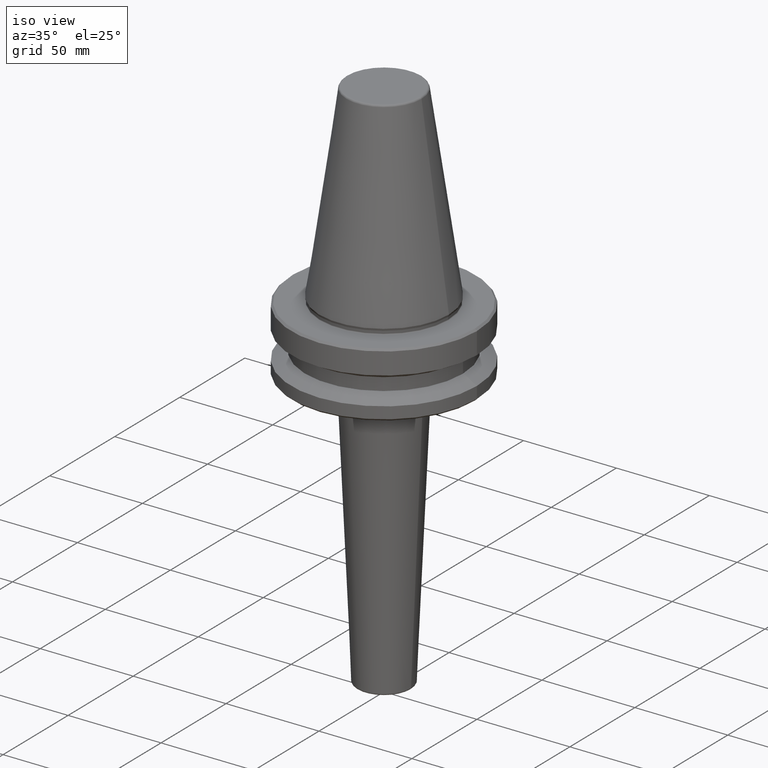
[diagram: clean part render]
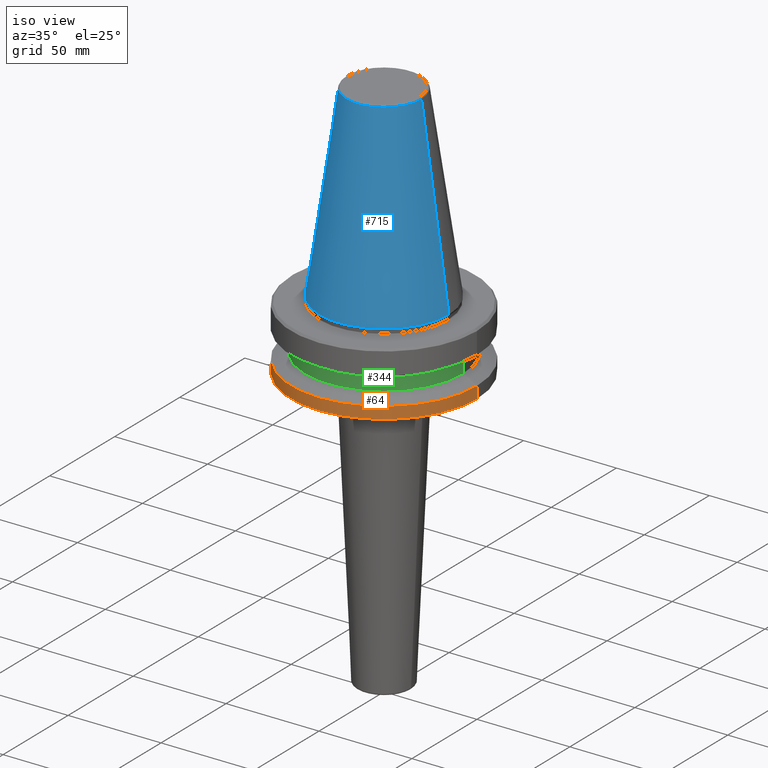
[diagram: same view with three faces highlighted in distinct colors, each labeled with its STEP entity id]
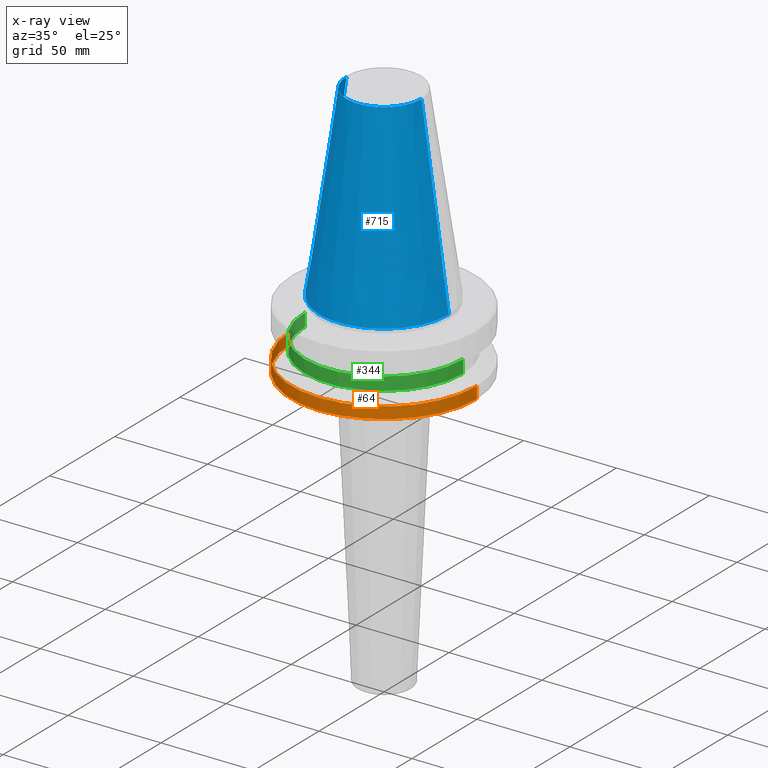
[diagram: x-ray of the same camera — body ghosted, the three highlighted faces saturated]
A machine part, iso view with three faces highlighted in distinct colors.
The next image is the same camera in x-ray (body ghosted, the three faces saturated) — at least one of them is partly hidden behind the body in this view.
Their STEP definitions:

[orange] entity #64 — the highlighted cylindrical surface (partial cylindrical patch) has radius 50 mm, axis along (-0, -0, 1).
#24 = CARTESIAN_POINT ( 'NONE',  ( 50.00000000000000000, 0.0000000000000000000, -37.00000000000002100 ) ) ;
#36 = DIRECTION ( 'NONE',  ( -0.0000000000000000000, -0.0000000000000000000, 1.000000000000000000 ) ) ;
#56 = LINE ( 'NONE', #799, #87 ) ;
#64 = ADVANCED_FACE ( 'NONE', ( #219 ), #557, .T. ) ;
#87 = VECTOR ( 'NONE', #356, 1000.000000000000000 ) ;
#92 = EDGE_CURVE ( 'NONE', #574, #521, #382, .T. ) ;
#101 = EDGE_CURVE ( 'NONE', #245, #574, #626, .T. ) ;
#121 = ORIENTED_EDGE ( 'NONE', *, *, #92, .T. ) ;
#144 = CARTESIAN_POINT ( 'NONE',  ( -50.00000000000000000, 6.123233995736766100E-015, -30.69977999677324500 ) ) ;
#172 = ORIENTED_EDGE ( 'NONE', *, *, #462, .F. ) ;
#187 = CARTESIAN_POINT ( 'NONE',  ( 0.0000000000000000000, 0.0000000000000000000, -37.00000000000002100 ) ) ;
#198 = AXIS2_PLACEMENT_3D ( 'NONE', #187, #586, #346 ) ;
#219 = FACE_OUTER_BOUND ( 'NONE', #913, .T. ) ;
#245 = VERTEX_POINT ( 'NONE', #539 ) ;
#314 = CARTESIAN_POINT ( 'NONE',  ( 0.0000000000000000000, 0.0000000000000000000, 124.5046326327850600 ) ) ;
#346 = DIRECTION ( 'NONE',  ( 1.000000000000000000, 0.0000000000000000000, 0.0000000000000000000 ) ) ;
#356 = DIRECTION ( 'NONE',  ( -0.0000000000000000000, -0.0000000000000000000, 1.000000000000000000 ) ) ;
#382 = LINE ( 'NONE', #658, #439 ) ;
#387 = ORIENTED_EDGE ( 'NONE', *, *, #515, .F. ) ;
#435 = CARTESIAN_POINT ( 'NONE',  ( 50.00000000000000000, 0.0000000000000000000, -30.69977999677324500 ) ) ;
#439 = VECTOR ( 'NONE', #967, 1000.000000000000000 ) ;
#451 = CARTESIAN_POINT ( 'NONE',  ( 0.0000000000000000000, 0.0000000000000000000, -30.69977999677324500 ) ) ;
#462 = EDGE_CURVE ( 'NONE', #754, #521, #476, .T. ) ;
#476 = CIRCLE ( 'NONE', #733, 50.00000000000000000 ) ;
#515 = EDGE_CURVE ( 'NONE', #245, #754, #56, .T. ) ;
#521 = VERTEX_POINT ( 'NONE', #435 ) ;
#539 = CARTESIAN_POINT ( 'NONE',  ( -50.00000000000000000, 6.123233995736766100E-015, -37.00000000000002100 ) ) ;
#557 = CYLINDRICAL_SURFACE ( 'NONE', #620, 50.00000000000000000 ) ;
#574 = VERTEX_POINT ( 'NONE', #24 ) ;
#586 = DIRECTION ( 'NONE',  ( -0.0000000000000000000, -0.0000000000000000000, 1.000000000000000000 ) ) ;
#620 = AXIS2_PLACEMENT_3D ( 'NONE', #314, #36, #695 ) ;
#625 = ORIENTED_EDGE ( 'NONE', *, *, #101, .T. ) ;
#626 = CIRCLE ( 'NONE', #198, 50.00000000000000000 ) ;
#658 = CARTESIAN_POINT ( 'NONE',  ( 50.00000000000000000, 0.0000000000000000000, 124.5046326327850600 ) ) ;
#695 = DIRECTION ( 'NONE',  ( 1.000000000000000000, 0.0000000000000000000, 0.0000000000000000000 ) ) ;
#733 = AXIS2_PLACEMENT_3D ( 'NONE', #451, #741, #961 ) ;
#741 = DIRECTION ( 'NONE',  ( -0.0000000000000000000, -0.0000000000000000000, 1.000000000000000000 ) ) ;
#754 = VERTEX_POINT ( 'NONE', #144 ) ;
#799 = CARTESIAN_POINT ( 'NONE',  ( -50.00000000000000000, 6.123233995736766100E-015, 124.5046326327850600 ) ) ;
#913 = EDGE_LOOP ( 'NONE', ( #387, #625, #121, #172 ) ) ;
#961 = DIRECTION ( 'NONE',  ( 1.000000000000000000, 0.0000000000000000000, 0.0000000000000000000 ) ) ;
#967 = DIRECTION ( 'NONE',  ( -0.0000000000000000000, -0.0000000000000000000, 1.000000000000000000 ) ) ;

[blue] entity #715 — the highlighted conical surface has half-angle 8.297 deg.
#11 = CARTESIAN_POINT ( 'NONE',  ( 34.92499999999999700, 0.0000000000000000000, 0.0000000000000000000 ) ) ;
#26 = CARTESIAN_POINT ( 'NONE',  ( 20.20381605152244500, 3.375666405914009100E-015, 100.9443082272672900 ) ) ;
#76 = EDGE_CURVE ( 'NONE', #853, #288, #258, .T. ) ;
#82 = DIRECTION ( 'NONE',  ( -0.1443082272673000800, 0.0000000000000000000, -0.9895327864921754600 ) ) ;
#105 = VERTEX_POINT ( 'NONE', #544 ) ;
#120 = VERTEX_POINT ( 'NONE', #512 ) ;
#147 = EDGE_CURVE ( 'NONE', #120, #105, #183, .T. ) ;
#183 = LINE ( 'NONE', #561, #464 ) ;
#220 = AXIS2_PLACEMENT_3D ( 'NONE', #538, #692, #400 ) ;
#234 = ORIENTED_EDGE ( 'NONE', *, *, #506, .F. ) ;
#241 = ORIENTED_EDGE ( 'NONE', *, *, #76, .F. ) ;
#258 = LINE ( 'NONE', #577, #350 ) ;
#288 = VERTEX_POINT ( 'NONE', #11 ) ;
#350 = VECTOR ( 'NONE', #785, 1000.000000000000000 ) ;
#352 = DIRECTION ( 'NONE',  ( 1.000000000000000000, 0.0000000000000000000, 0.0000000000000000000 ) ) ;
#366 = DIRECTION ( 'NONE',  ( -0.0000000000000000000, -0.0000000000000000000, 1.000000000000000000 ) ) ;
#385 = EDGE_LOOP ( 'NONE', ( #241, #234, #656, #896 ) ) ;
#400 = DIRECTION ( 'NONE',  ( -1.000000000000000000, 0.0000000000000000000, 0.0000000000000000000 ) ) ;
#416 = AXIS2_PLACEMENT_3D ( 'NONE', #762, #366, #689 ) ;
#464 = VECTOR ( 'NONE', #82, 1000.000000000000000 ) ;
#506 = EDGE_CURVE ( 'NONE', #120, #853, #962, .T. ) ;
#512 = CARTESIAN_POINT ( 'NONE',  ( -20.20381605152244500, 0.0000000000000000000, 100.9443082272672900 ) ) ;
#538 = CARTESIAN_POINT ( 'NONE',  ( 0.0000000000000000000, 0.0000000000000000000, 0.0000000000000000000 ) ) ;
#544 = CARTESIAN_POINT ( 'NONE',  ( -34.92499999999999700, 4.277078946022131700E-015, 0.0000000000000000000 ) ) ;
#561 = CARTESIAN_POINT ( 'NONE',  ( -34.92499999999999700, 0.0000000000000000000, 0.0000000000000000000 ) ) ;
#577 = CARTESIAN_POINT ( 'NONE',  ( 34.92499999999999700, 4.277078946022130900E-015, 0.0000000000000000000 ) ) ;
#624 = CIRCLE ( 'NONE', #416, 34.92499999999999700 ) ;
#649 = CARTESIAN_POINT ( 'NONE',  ( 0.0000000000000000000, 0.0000000000000000000, 100.9443082272672900 ) ) ;
#656 = ORIENTED_EDGE ( 'NONE', *, *, #147, .T. ) ;
#689 = DIRECTION ( 'NONE',  ( 1.000000000000000000, 0.0000000000000000000, 0.0000000000000000000 ) ) ;
#692 = DIRECTION ( 'NONE',  ( 0.0000000000000000000, 0.0000000000000000000, -1.000000000000000000 ) ) ;
#696 = FACE_OUTER_BOUND ( 'NONE', #385, .T. ) ;
#715 = ADVANCED_FACE ( 'NONE', ( #696 ), #948, .T. ) ;
#722 = DIRECTION ( 'NONE',  ( -0.0000000000000000000, -0.0000000000000000000, 1.000000000000000000 ) ) ;
#762 = CARTESIAN_POINT ( 'NONE',  ( 0.0000000000000000000, 0.0000000000000000000, 0.0000000000000000000 ) ) ;
#785 = DIRECTION ( 'NONE',  ( 0.1443082272673000800, 1.767266086135278300E-017, -0.9895327864921754600 ) ) ;
#853 = VERTEX_POINT ( 'NONE', #26 ) ;
#896 = ORIENTED_EDGE ( 'NONE', *, *, #942, .T. ) ;
#942 = EDGE_CURVE ( 'NONE', #105, #288, #624, .T. ) ;
#948 = CONICAL_SURFACE ( 'NONE', #220, 34.92499999999999700, 0.1448138465474120600 ) ;
#962 = CIRCLE ( 'NONE', #971, 20.20381605152244500 ) ;
#971 = AXIS2_PLACEMENT_3D ( 'NONE', #649, #722, #352 ) ;

[green] entity #344 — the highlighted cylindrical surface (partial cylindrical patch) has radius 42.5 mm, axis along (-0, -0, 1).
#8 = CARTESIAN_POINT ( 'NONE',  ( 0.0000000000000000000, 0.0000000000000000000, -19.70000000000001000 ) ) ;
#17 = DIRECTION ( 'NONE',  ( -0.0000000000000000000, -0.0000000000000000000, 1.000000000000000000 ) ) ;
#107 = AXIS2_PLACEMENT_3D ( 'NONE', #375, #309, #532 ) ;
#109 = CARTESIAN_POINT ( 'NONE',  ( -42.50000000000000000, 5.204748896376250900E-015, -26.69999999999998900 ) ) ;
#119 = DIRECTION ( 'NONE',  ( -0.0000000000000000000, -0.0000000000000000000, 1.000000000000000000 ) ) ;
#167 = CARTESIAN_POINT ( 'NONE',  ( -42.50000000000000000, 5.204748896376250900E-015, -19.70000000000001000 ) ) ;
#201 = AXIS2_PLACEMENT_3D ( 'NONE', #8, #404, #621 ) ;
#224 = CARTESIAN_POINT ( 'NONE',  ( 42.50000000000000000, 0.0000000000000000000, -26.69999999999998900 ) ) ;
#247 = VECTOR ( 'NONE', #119, 1000.000000000000000 ) ;
#309 = DIRECTION ( 'NONE',  ( -0.0000000000000000000, -0.0000000000000000000, 1.000000000000000000 ) ) ;
#318 = VERTEX_POINT ( 'NONE', #109 ) ;
#330 = VECTOR ( 'NONE', #17, 1000.000000000000000 ) ;
#331 = VERTEX_POINT ( 'NONE', #167 ) ;
#344 = ADVANCED_FACE ( 'NONE', ( #758 ), #900, .T. ) ;
#370 = DIRECTION ( 'NONE',  ( 1.000000000000000000, 0.0000000000000000000, 0.0000000000000000000 ) ) ;
#375 = CARTESIAN_POINT ( 'NONE',  ( 0.0000000000000000000, 0.0000000000000000000, 124.5046326327850600 ) ) ;
#404 = DIRECTION ( 'NONE',  ( -0.0000000000000000000, -0.0000000000000000000, 1.000000000000000000 ) ) ;
#485 = EDGE_CURVE ( 'NONE', #318, #331, #555, .T. ) ;
#492 = AXIS2_PLACEMENT_3D ( 'NONE', #945, #825, #370 ) ;
#507 = VERTEX_POINT ( 'NONE', #224 ) ;
#532 = DIRECTION ( 'NONE',  ( 1.000000000000000000, 0.0000000000000000000, 0.0000000000000000000 ) ) ;
#542 = CARTESIAN_POINT ( 'NONE',  ( 42.50000000000000000, 0.0000000000000000000, -19.70000000000001000 ) ) ;
#555 = LINE ( 'NONE', #651, #247 ) ;
#584 = CIRCLE ( 'NONE', #492, 42.50000000000000000 ) ;
#611 = ORIENTED_EDGE ( 'NONE', *, *, #485, .F. ) ;
#614 = VERTEX_POINT ( 'NONE', #542 ) ;
#621 = DIRECTION ( 'NONE',  ( 1.000000000000000000, 0.0000000000000000000, 0.0000000000000000000 ) ) ;
#639 = ORIENTED_EDGE ( 'NONE', *, *, #765, .T. ) ;
#651 = CARTESIAN_POINT ( 'NONE',  ( -42.50000000000000000, 5.204748896376250900E-015, 124.5046326327850600 ) ) ;
#729 = LINE ( 'NONE', #788, #330 ) ;
#758 = FACE_OUTER_BOUND ( 'NONE', #955, .T. ) ;
#765 = EDGE_CURVE ( 'NONE', #318, #507, #584, .T. ) ;
#788 = CARTESIAN_POINT ( 'NONE',  ( 42.50000000000000000, 0.0000000000000000000, 124.5046326327850600 ) ) ;
#790 = ORIENTED_EDGE ( 'NONE', *, *, #974, .T. ) ;
#825 = DIRECTION ( 'NONE',  ( -0.0000000000000000000, -0.0000000000000000000, 1.000000000000000000 ) ) ;
#900 = CYLINDRICAL_SURFACE ( 'NONE', #107, 42.50000000000000000 ) ;
#904 = EDGE_CURVE ( 'NONE', #331, #614, #973, .T. ) ;
#945 = CARTESIAN_POINT ( 'NONE',  ( 0.0000000000000000000, 0.0000000000000000000, -26.69999999999998900 ) ) ;
#955 = EDGE_LOOP ( 'NONE', ( #611, #639, #790, #1002 ) ) ;
#973 = CIRCLE ( 'NONE', #201, 42.50000000000000000 ) ;
#974 = EDGE_CURVE ( 'NONE', #507, #614, #729, .T. ) ;
#1002 = ORIENTED_EDGE ( 'NONE', *, *, #904, .F. ) ;